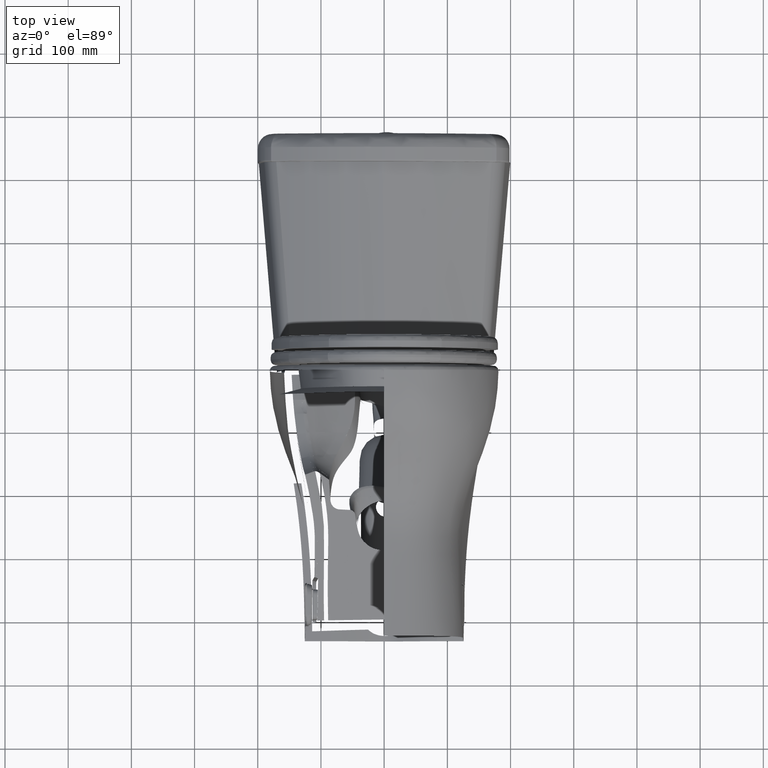
[diagram: clean part render]
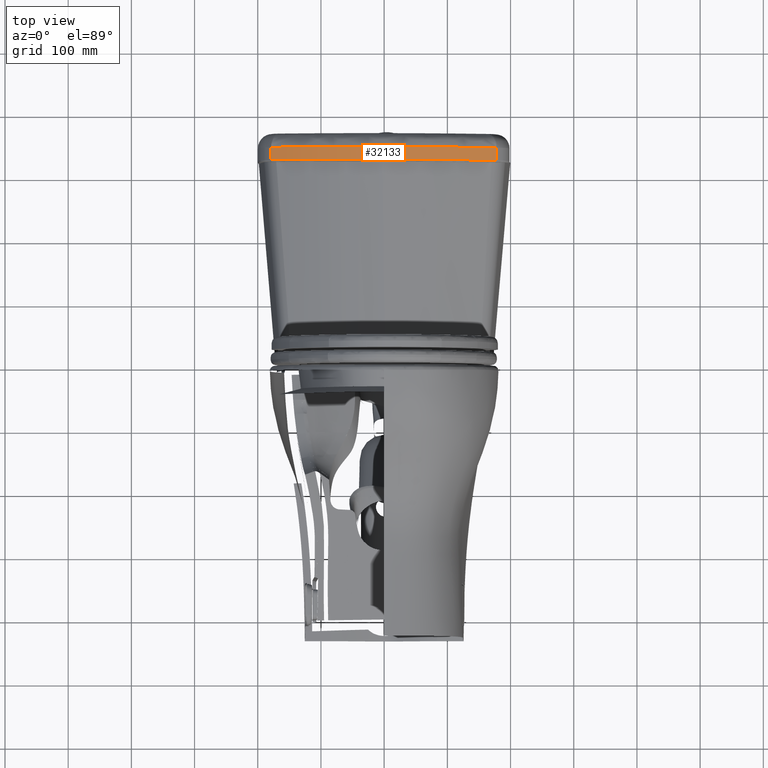
[diagram: same view with one face highlighted and labeled with its STEP entity id]
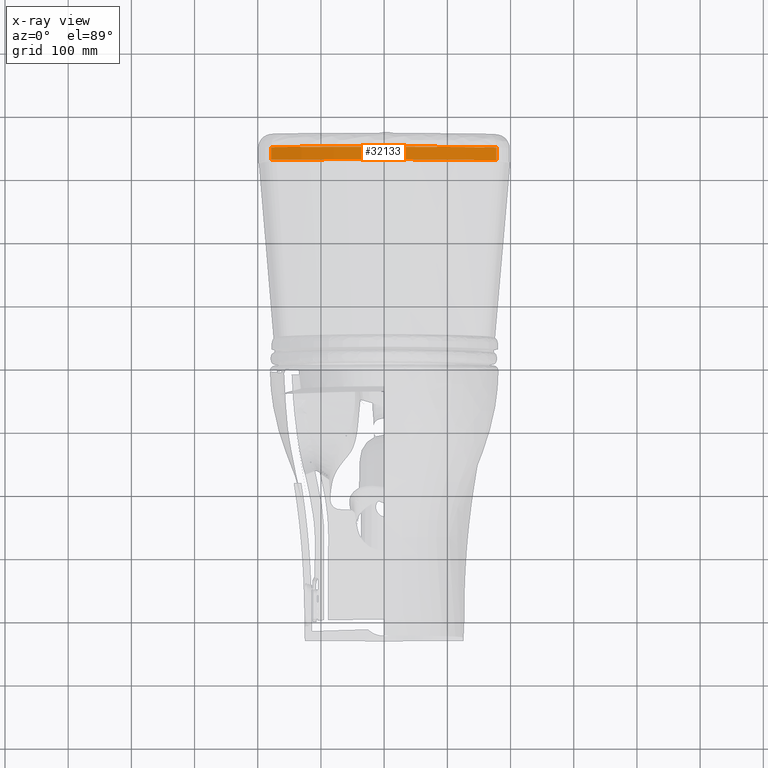
[diagram: x-ray of the same camera — body ghosted, the highlighted face saturated]
A machine part, top view. The second image highlights one B-rep face of the part: STEP entity #32133.
The next image is the same camera in x-ray: the body ghosted, the highlighted face saturated — about 0% of this face is hidden behind the body in this view.
In plain terms, the highlighted cylindrical surface (partial cylindrical patch) has radius 377.799 mm, axis along (-0.0016, -1, 0.0078).
Its self-contained STEP definition (entity closure, byte-faithful):
#1761 = CARTESIAN_POINT ( 'NONE',  ( -0.03502716497385827100, 16.63796409942086600, 12.73909235848700800 ) ) ;
#3199 = CYLINDRICAL_SURFACE ( 'NONE', #5803, 14.87397107911495900 ) ;
#5803 = AXIS2_PLACEMENT_3D ( 'NONE', #1761, #99017, #100581 ) ;
#8101 = CARTESIAN_POINT ( 'NONE',  ( -7.043346981340655500, 3.519059434952263000, 12.85227105989567400 ) ) ;
#15755 = VERTEX_POINT ( 'NONE', #105995 ) ;
#21086 = ORIENTED_EDGE ( 'NONE', *, *, #76651, .F. ) ;
#26860 = DIRECTION ( 'NONE',  ( -0.001635081540905439000, -0.007753389206448082000, -0.9999686052392684500 ) ) ;
#28114 = ORIENTED_EDGE ( 'NONE', *, *, #118232, .T. ) ;
#31698 = FACE_OUTER_BOUND ( 'NONE', #132319, .T. ) ;
#32133 = ADVANCED_FACE ( 'NONE', ( #31698 ), #3199, .T. ) ;
#32363 = CARTESIAN_POINT ( 'NONE',  ( 6.988502588341919600, 3.527017745842234500, 12.82926541554100700 ) ) ;
#35984 = CARTESIAN_POINT ( 'NONE',  ( 6.989957214466210500, 3.534072232306977800, 13.73474832372167900 ) ) ;
#39485 = CARTESIAN_POINT ( 'NONE',  ( -7.043155804112442000, 3.519972446659350100, 12.97037759391267300 ) ) ;
#46285 = VECTOR ( 'NONE', #129815, 39.37007874015748100 ) ;
#51186 = EDGE_CURVE ( 'NONE', #84656, #15755, #120832, .T. ) ;
#61314 = VERTEX_POINT ( 'NONE', #90435 ) ;
#63731 = VECTOR ( 'NONE', #142891, 39.37007874015748100 ) ;
#67914 = DIRECTION ( 'NONE',  ( -0.001635081540905439000, -0.007753389206448082000, -0.9999686052392684500 ) ) ;
#76651 = EDGE_CURVE ( 'NONE', #15755, #138800, #93450, .T. ) ;
#77311 = CARTESIAN_POINT ( 'NONE',  ( -0.03483404510681102600, 16.63887985405157400, 12.85719888666496200 ) ) ;
#78059 = DIRECTION ( 'NONE',  ( 0.0000000000000000000, 0.9999699419458046900, -0.007753399570779446500 ) ) ;
#79432 = CIRCLE ( 'NONE', #145850, 14.87397107911495900 ) ;
#84656 = VERTEX_POINT ( 'NONE', #35984 ) ;
#85535 = ORIENTED_EDGE ( 'NONE', *, *, #51186, .F. ) ;
#88359 = AXIS2_PLACEMENT_3D ( 'NONE', #77311, #26860, #125743 ) ;
#90435 = CARTESIAN_POINT ( 'NONE',  ( -7.041832480167692600, 3.526126549093297100, 13.75775369109232900 ) ) ;
#93450 = CIRCLE ( 'NONE', #88359, 14.87397107911496600 ) ;
#99017 = DIRECTION ( 'NONE',  ( -0.001635081540905439000, -0.007753389206448082000, -0.9999686052392684500 ) ) ;
#100581 = DIRECTION ( 'NONE',  ( 0.0000000000000000000, 0.9999699419458046900, -0.007753399570779446500 ) ) ;
#101567 = EDGE_CURVE ( 'NONE', #84656, #61314, #79432, .T. ) ;
#103041 = CARTESIAN_POINT ( 'NONE',  ( -0.03354657932658144900, 16.64498488492277100, 13.64457574118413200 ) ) ;
#105995 = CARTESIAN_POINT ( 'NONE',  ( 6.988696167702309800, 3.527932815553450400, 12.94737194367415600 ) ) ;
#118232 = EDGE_CURVE ( 'NONE', #61314, #138800, #148997, .T. ) ;
#120832 = LINE ( 'NONE', #32363, #63731 ) ;
#125743 = DIRECTION ( 'NONE',  ( -0.4711801427537426500, -0.8820041799655165000, 0.007609178531183966000 ) ) ;
#129815 = DIRECTION ( 'NONE',  ( -0.001635081540905439000, -0.007753389206448082000, -0.9999686052392684500 ) ) ;
#131290 = ORIENTED_EDGE ( 'NONE', *, *, #101567, .T. ) ;
#132319 = EDGE_LOOP ( 'NONE', ( #131290, #28114, #21086, #85535 ) ) ;
#138800 = VERTEX_POINT ( 'NONE', #39485 ) ;
#142891 = DIRECTION ( 'NONE',  ( -0.001635081540905439000, -0.007753389206448082000, -0.9999686052392684500 ) ) ;
#145850 = AXIS2_PLACEMENT_3D ( 'NONE', #103041, #67914, #78059 ) ;
#148997 = LINE ( 'NONE', #8101, #46285 ) ;